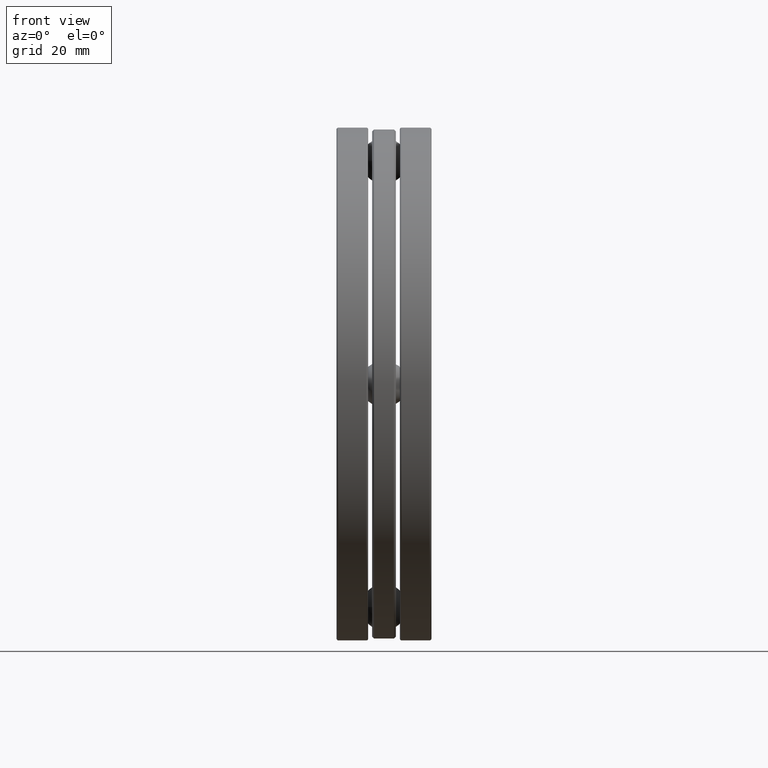
[diagram: clean part render]
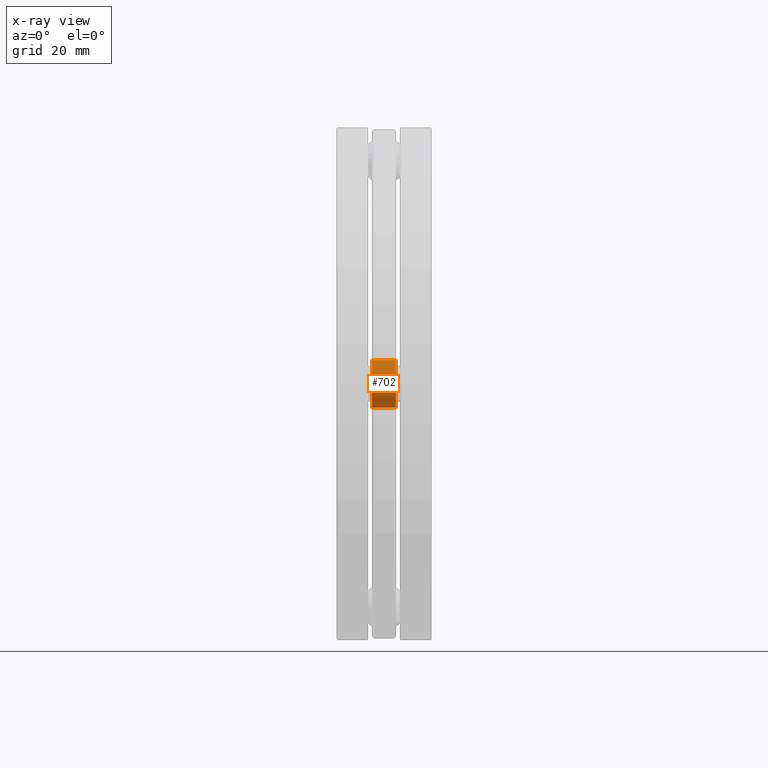
[diagram: x-ray — body ghosted, one internal face saturated and labeled with its STEP entity id]
A machine part, front view, then the same camera in x-ray: the body is ghosted and one INTERNAL B-rep face — a face not visible from any outside direction — is saturated and labeled: STEP entity #702.
In plain terms, the highlighted cylindrical surface (bore or boss wall) has radius 6.2738 mm, axis along (1, -0, -0).
Its self-contained STEP definition (entity closure, byte-faithful):
#63 = AXIS2_PLACEMENT_3D ( 'NONE', #812, #498, #176 ) ;
#117 = EDGE_CURVE ( 'NONE', #687, #687, #367, .T. ) ;
#129 = FACE_OUTER_BOUND ( 'NONE', #152, .T. ) ;
#152 = EDGE_LOOP ( 'NONE', ( #339 ) ) ;
#154 = EDGE_CURVE ( 'NONE', #329, #329, #471, .T. ) ;
#176 = DIRECTION ( 'NONE',  ( 0.0000000000000000000, 0.0000000000000000000, -1.000000000000000000 ) ) ;
#213 = ORIENTED_EDGE ( 'NONE', *, *, #117, .T. ) ;
#293 = DIRECTION ( 'NONE',  ( -1.000000000000000000, -0.0000000000000000000, -0.0000000000000000000 ) ) ;
#329 = VERTEX_POINT ( 'NONE', #671 ) ;
#335 = AXIS2_PLACEMENT_3D ( 'NONE', #500, #293, #568 ) ;
#339 = ORIENTED_EDGE ( 'NONE', *, *, #154, .T. ) ;
#367 = CIRCLE ( 'NONE', #335, 0.2470000000000005000 ) ;
#378 = DIRECTION ( 'NONE',  ( 0.0000000000000000000, 0.0000000000000000000, -1.000000000000000000 ) ) ;
#381 = CYLINDRICAL_SURFACE ( 'NONE', #63, 0.2470000000000005000 ) ;
#445 = CARTESIAN_POINT ( 'NONE',  ( 0.1230000000000000100, 2.313000000000000200, 0.0000000000000000000 ) ) ;
#471 = CIRCLE ( 'NONE', #633, 0.2470000000000005000 ) ;
#495 = FACE_OUTER_BOUND ( 'NONE', #598, .T. ) ;
#498 = DIRECTION ( 'NONE',  ( 1.000000000000000000, -0.0000000000000000000, -0.0000000000000000000 ) ) ;
#500 = CARTESIAN_POINT ( 'NONE',  ( -0.1229999999999999600, 2.313000000000000200, 0.0000000000000000000 ) ) ;
#509 = DIRECTION ( 'NONE',  ( 1.000000000000000000, -0.0000000000000000000, 0.0000000000000000000 ) ) ;
#568 = DIRECTION ( 'NONE',  ( 0.0000000000000000000, 0.0000000000000000000, -1.000000000000000000 ) ) ;
#571 = CARTESIAN_POINT ( 'NONE',  ( -0.1229999999999999600, 2.313000000000000200, -0.2470000000000005000 ) ) ;
#598 = EDGE_LOOP ( 'NONE', ( #213 ) ) ;
#633 = AXIS2_PLACEMENT_3D ( 'NONE', #445, #509, #378 ) ;
#671 = CARTESIAN_POINT ( 'NONE',  ( 0.1230000000000000100, 2.313000000000000200, -0.2470000000000005000 ) ) ;
#687 = VERTEX_POINT ( 'NONE', #571 ) ;
#702 = ADVANCED_FACE ( 'NONE', ( #129, #495 ), #381, .F. ) ;
#812 = CARTESIAN_POINT ( 'NONE',  ( -0.4920393700787402100, 2.313000000000000200, 0.0000000000000000000 ) ) ;